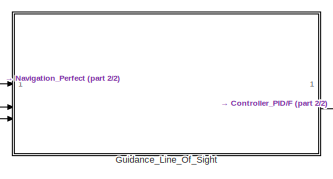
[diagram: root canvas - part 1/2, top left region]
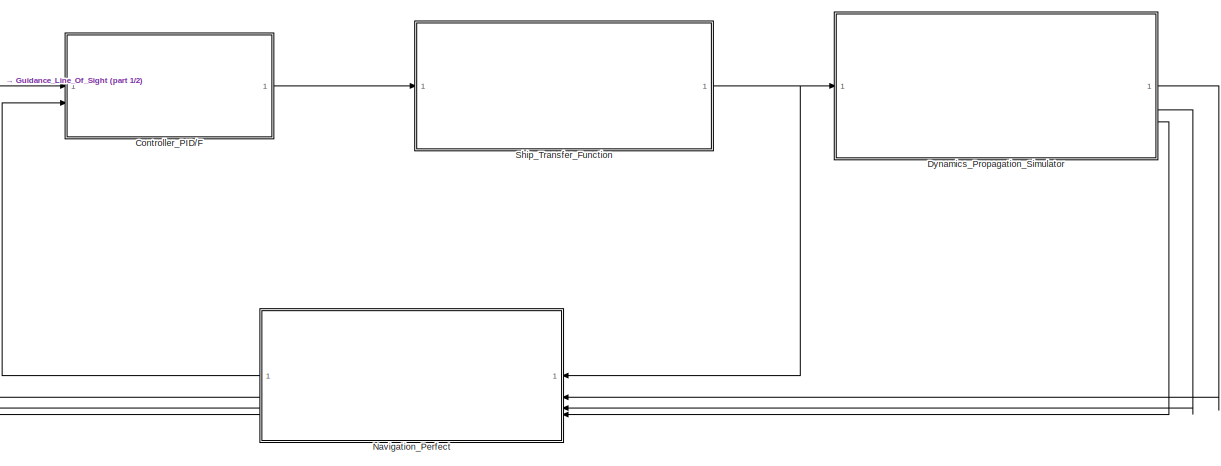
[diagram: root canvas - part 2/2, center side, full height]
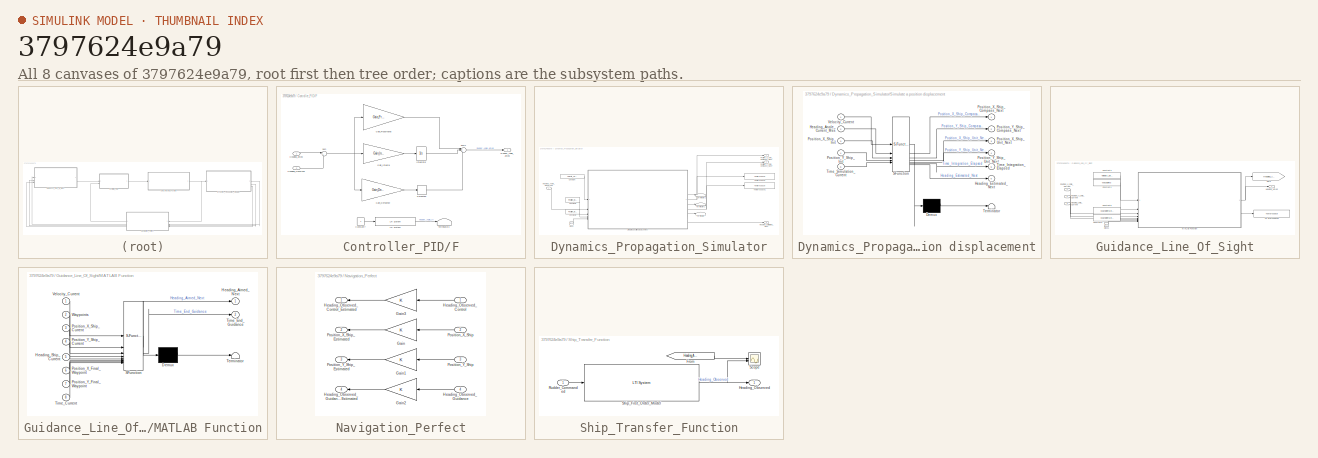
[diagram: thumbnail index - all 8 canvases of the model, root first then tree order]
MODEL slx_3797624e9a79
KIND model
CONFIG AbsTol = auto
CONFIG EnableMultiTasking = off
CONFIG FixedStep = auto
CONFIG MaxStep = auto
CONFIG MinStep = auto
CONFIG RelTol = 1e-3
CONFIG SampleTimeConstraint = Unconstrained
CONFIG SolverName = VariableStepAuto
CONFIG StartTime = 0.0
CONFIG StopTime = 2842
BLOCK [SubSystem] Controller_PID//F
BLOCK [Constant] Controller_PID//F/Constant7
BLOCK [Derivative] Controller_PID//F/Derivative
BLOCK [Gain] Controller_PID//F/Gain_Derivative
  Gain = Gain_Derivative_Controller
BLOCK [Gain] Controller_PID//F/Gain_Integral
  Gain = Gain_Integral_Controller
BLOCK [Gain] Controller_PID//F/Gain_Proportional
  Gain = Gain_Proportional_Controller
BLOCK [Inport] Controller_PID//F/Heading_Aimed
BLOCK [Inport] Controller_PID//F/Heading_Observed
  Port = 2
BLOCK [Integrator] Controller_PID//F/Integrator
BLOCK [Reference] Controller_PID//F/LTI System  REF=cstblocks/LTI System
  SourceBlock = cstblocks/LTI System
  SourceType = LTI Block
BLOCK [Outport] Controller_PID//F/Rudder_Angle_Aimed
BLOCK [Sum] Controller_PID//F/Sum
  Inputs = |+-
BLOCK [Sum] Controller_PID//F/Sum1
  Inputs = |+++
BLOCK [Terminator] Controller_PID//F/Terminator3
BLOCK [SubSystem] Dynamics_Propagation_Simulator
BLOCK [Clock] Dynamics_Propagation_Simulator/Clock
BLOCK [Constant] Dynamics_Propagation_Simulator/Constant
  Value = Velocity_Ship_Mean
BLOCK [Constant] Dynamics_Propagation_Simulator/Constant1
  Value = Position_Initial_X
BLOCK [Constant] Dynamics_Propagation_Simulator/Constant2
  Value = Position_Initial_Y
BLOCK [Inport] Dynamics_Propagation_Simulator/Heading_Angle_Observed
BLOCK [Outport] Dynamics_Propagation_Simulator/Heading_Estimated_Next
  Port = 3
BLOCK [Outport] Dynamics_Propagation_Simulator/Position_X_Ship_Compass_Next
BLOCK [Outport] Dynamics_Propagation_Simulator/Position_Y_Ship_Compass_Next
  Port = 2
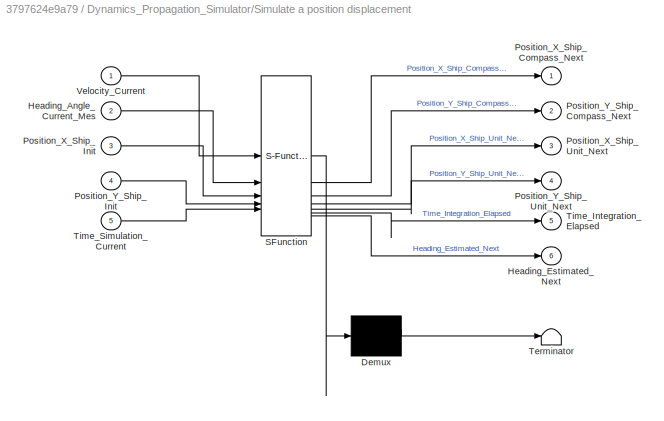
BLOCK [SubSystem] Dynamics_Propagation_Simulator/Simulate a position displacement
  ErrorFcn = Stateflow.Translate.translate
  PermitHierarchicalResolution = ExplicitOnly
  SFBlockType = MATLAB Function
  TreatAsAtomicUnit = on
BLOCK [Demux] Dynamics_Propagation_Simulator/Simulate a position displacement/ Demux 
  Outputs = 1
BLOCK [S-Function] Dynamics_Propagation_Simulator/Simulate a position displacement/ SFunction 
  EnableBusSupport = on
  FunctionName = sf_sfun
  PortCounts = [5 7]
  SFcnIsStateOwnerBlock = off
  SFunctionDeploymentMode = off
  Tag = Stateflow S-Function 2
BLOCK [Terminator] Dynamics_Propagation_Simulator/Simulate a position displacement/ Terminator 
BLOCK [Inport] Dynamics_Propagation_Simulator/Simulate a position displacement/Heading_Angle_Current_Mes
  Port = 2
BLOCK [Outport] Dynamics_Propagation_Simulator/Simulate a position displacement/Heading_Estimated_Next
  Port = 6
BLOCK [Outport] Dynamics_Propagation_Simulator/Simulate a position displacement/Position_X_Ship_Compass_Next
BLOCK [Inport] Dynamics_Propagation_Simulator/Simulate a position displacement/Position_X_Ship_Init
  Port = 3
BLOCK [Outport] Dynamics_Propagation_Simulator/Simulate a position displacement/Position_X_Ship_Unit_Next
  Port = 3
BLOCK [Outport] Dynamics_Propagation_Simulator/Simulate a position displacement/Position_Y_Ship_Compass_Next
  Port = 2
BLOCK [Inport] Dynamics_Propagation_Simulator/Simulate a position displacement/Position_Y_Ship_Init
  Port = 4
BLOCK [Outport] Dynamics_Propagation_Simulator/Simulate a position displacement/Position_Y_Ship_Unit_Next
  Port = 4
BLOCK [Outport] Dynamics_Propagation_Simulator/Simulate a position displacement/Time_Integration_Elapsed
  Port = 5
BLOCK [Inport] Dynamics_Propagation_Simulator/Simulate a position displacement/Time_Simulation_Current
  Port = 5
BLOCK [Inport] Dynamics_Propagation_Simulator/Simulate a position displacement/Velocity_Current
BLOCK [Terminator] Dynamics_Propagation_Simulator/Terminator
BLOCK [Terminator] Dynamics_Propagation_Simulator/Terminator1
BLOCK [Terminator] Dynamics_Propagation_Simulator/Terminator2
BLOCK [ToWorkspace] Dynamics_Propagation_Simulator/To Workspace
  FixptAsFi = on
  MaxDataPoints = inf
  SampleTime = -1
  SaveFormat = Timeseries
  VariableName = Position_Along_X_Axis
BLOCK [ToWorkspace] Dynamics_Propagation_Simulator/To Workspace1
  FixptAsFi = on
  MaxDataPoints = inf
  SampleTime = -1
  SaveFormat = Timeseries
  VariableName = Position_Along_Y_Axis
BLOCK [SubSystem] Guidance_Line_Of_Sight
BLOCK [Clock] Guidance_Line_Of_Sight/Clock1
BLOCK [Constant] Guidance_Line_Of_Sight/Constant3
  Value = Velocity_Ship_Mean
BLOCK [Constant] Guidance_Line_Of_Sight/Constant4
  Value = Waypoints
BLOCK [Constant] Guidance_Line_Of_Sight/Constant5
  Value = Waypoints(end,1)
BLOCK [Constant] Guidance_Line_Of_Sight/Constant6
  Value = Waypoints(end,2)
BLOCK [Goto] Guidance_Line_Of_Sight/Goto
  GotoTag = Heading_Aimed
  TagVisibility = global
BLOCK [Outport] Guidance_Line_Of_Sight/Heading_Aimed
BLOCK [Inport] Guidance_Line_Of_Sight/Heading_Ship_Current
  Port = 3
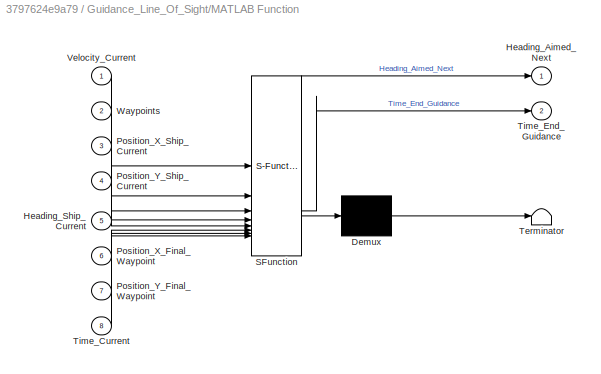
BLOCK [SubSystem] Guidance_Line_Of_Sight/MATLAB Function
  ErrorFcn = Stateflow.Translate.translate
  PermitHierarchicalResolution = ExplicitOnly
  SFBlockType = MATLAB Function
  TreatAsAtomicUnit = on
BLOCK [Demux] Guidance_Line_Of_Sight/MATLAB Function/ Demux 
  Outputs = 1
BLOCK [S-Function] Guidance_Line_Of_Sight/MATLAB Function/ SFunction 
  EnableBusSupport = on
  FunctionName = sf_sfun
  PortCounts = [8 3]
  SFcnIsStateOwnerBlock = off
  SFunctionDeploymentMode = off
  Tag = Stateflow S-Function 1
BLOCK [Terminator] Guidance_Line_Of_Sight/MATLAB Function/ Terminator 
BLOCK [Outport] Guidance_Line_Of_Sight/MATLAB Function/Heading_Aimed_Next
BLOCK [Inport] Guidance_Line_Of_Sight/MATLAB Function/Heading_Ship_Current
  Port = 5
BLOCK [Inport] Guidance_Line_Of_Sight/MATLAB Function/Position_X_Final_Waypoint
  Port = 6
BLOCK [Inport] Guidance_Line_Of_Sight/MATLAB Function/Position_X_Ship_Current
  Port = 3
BLOCK [Inport] Guidance_Line_Of_Sight/MATLAB Function/Position_Y_Final_Waypoint
  Port = 7
BLOCK [Inport] Guidance_Line_Of_Sight/MATLAB Function/Position_Y_Ship_Current
  Port = 4
BLOCK [Inport] Guidance_Line_Of_Sight/MATLAB Function/Time_Current
  Port = 8
BLOCK [Outport] Guidance_Line_Of_Sight/MATLAB Function/Time_End_Guidance
  Port = 2
BLOCK [Inport] Guidance_Line_Of_Sight/MATLAB Function/Velocity_Current
BLOCK [Inport] Guidance_Line_Of_Sight/MATLAB Function/Waypoints
  Port = 2
BLOCK [Inport] Guidance_Line_Of_Sight/Position_X_Ship_Current
BLOCK [Inport] Guidance_Line_Of_Sight/Position_Y_Ship_Current
  Port = 2
BLOCK [ToWorkspace] Guidance_Line_Of_Sight/To Workspace2
  FixptAsFi = on
  MaxDataPoints = inf
  SampleTime = -1
  SaveFormat = Timeseries
  VariableName = Time_End_Guidance_Algorithm
BLOCK [SubSystem] Navigation_Perfect
BLOCK [Gain] Navigation_Perfect/Gain
BLOCK [Gain] Navigation_Perfect/Gain1
BLOCK [Gain] Navigation_Perfect/Gain2
BLOCK [Gain] Navigation_Perfect/Gain3
BLOCK [Inport] Navigation_Perfect/Heading_Observed_Control
BLOCK [Outport] Navigation_Perfect/Heading_Observed_Control_Estimated
BLOCK [Inport] Navigation_Perfect/Heading_Observed_Guidance
  Port = 4
BLOCK [Outport] Navigation_Perfect/Heading_Observed_Guidance_Estimated
  Port = 4
BLOCK [Inport] Navigation_Perfect/Position_X_Ship
  Port = 2
BLOCK [Outport] Navigation_Perfect/Position_X_Ship_Estimated
  Port = 2
BLOCK [Inport] Navigation_Perfect/Position_Y_Ship
  Port = 3
BLOCK [Outport] Navigation_Perfect/Position_Y_Ship_Estimated
  Port = 3
BLOCK [SubSystem] Ship_Transfer_Function
BLOCK [From] Ship_Transfer_Function/From
  GotoTag = Heading_Aimed
  TagVisibility = global
BLOCK [Outport] Ship_Transfer_Function/Heading_Observed
BLOCK [Inport] Ship_Transfer_Function/Rudder_Commanded
BLOCK [Scope] Ship_Transfer_Function/Scope
  Floating = off
  NumInputPorts = 2
  ScopeSpecificationString = Simulink.scopes.TimeScopeBlockCfg('CurrentConfiguration', extmgr.ConfigurationSet(extmgr.Configuration('Core','General UI',true),extmgr.Configuration('Core','Source UI',true),extmgr.Configuration('Sources','WiredSimulink',true),extmgr.Configuration('Visuals','Time Domain',true,'SerializedDisplays',{struct('MinYLimReal','-1.40631','MaxYLimReal','3.01601','YLabelReal','','MinYLimMag','0.00000','MaxY...<+1492ch>
BLOCK [Reference] Ship_Transfer_Function/Ship_First_Order_Model  REF=cstblocks/LTI System
  SourceBlock = cstblocks/LTI System
  SourceType = LTI Block
LINE Controller_PID//F/Constant7:1 -> Controller_PID//F/LTI System:1
LINE Controller_PID//F/Derivative:1 -> Controller_PID//F/Sum1:3
LINE Controller_PID//F/Gain_Derivative:1 -> Controller_PID//F/Derivative:1
LINE Controller_PID//F/Gain_Integral:1 -> Controller_PID//F/Integrator:1
LINE Controller_PID//F/Gain_Proportional:1 -> Controller_PID//F/Sum1:1
LINE Controller_PID//F/Heading_Aimed:1 -> Controller_PID//F/Sum:1
LINE Controller_PID//F/Heading_Observed:1 -> Controller_PID//F/Sum:2
LINE Controller_PID//F/Integrator:1 -> Controller_PID//F/Sum1:2
LINE Controller_PID//F/LTI System:1 -> Controller_PID//F/Terminator3:1
LINE Controller_PID//F/Sum1:1 -> Controller_PID//F/Rudder_Angle_Aimed:1
NET Controller_PID//F/Sum:1 -> Controller_PID//F/Gain_Derivative:1, Controller_PID//F/Gain_Integral:1, Controller_PID//F/Gain_Proportional:1
LINE Controller_PID//F:1 -> Ship_Transfer_Function:1
LINE Dynamics_Propagation_Simulator/Clock:1 -> Dynamics_Propagation_Simulator/Simulate a position displacement:5
LINE Dynamics_Propagation_Simulator/Constant1:1 -> Dynamics_Propagation_Simulator/Simulate a position displacement:3
LINE Dynamics_Propagation_Simulator/Constant2:1 -> Dynamics_Propagation_Simulator/Simulate a position displacement:4
LINE Dynamics_Propagation_Simulator/Constant:1 -> Dynamics_Propagation_Simulator/Simulate a position displacement:1
LINE Dynamics_Propagation_Simulator/Heading_Angle_Observed:1 -> Dynamics_Propagation_Simulator/Simulate a position displacement:2
NET Dynamics_Propagation_Simulator/Simulate a position displacement:1 -> Dynamics_Propagation_Simulator/Position_X_Ship_Compass_Next:1, Dynamics_Propagation_Simulator/To Workspace:1
NET Dynamics_Propagation_Simulator/Simulate a position displacement:2 -> Dynamics_Propagation_Simulator/Position_Y_Ship_Compass_Next:1, Dynamics_Propagation_Simulator/To Workspace1:1
LINE Dynamics_Propagation_Simulator/Simulate a position displacement:3 -> Dynamics_Propagation_Simulator/Terminator2:1
LINE Dynamics_Propagation_Simulator/Simulate a position displacement:4 -> Dynamics_Propagation_Simulator/Terminator1:1
LINE Dynamics_Propagation_Simulator/Simulate a position displacement:5 -> Dynamics_Propagation_Simulator/Terminator:1
LINE Dynamics_Propagation_Simulator/Simulate a position displacement:6 -> Dynamics_Propagation_Simulator/Heading_Estimated_Next:1
LINE Dynamics_Propagation_Simulator:1 -> Navigation_Perfect:2
LINE Dynamics_Propagation_Simulator:2 -> Navigation_Perfect:3
LINE Dynamics_Propagation_Simulator:3 -> Navigation_Perfect:4
LINE Guidance_Line_Of_Sight/Clock1:1 -> Guidance_Line_Of_Sight/MATLAB Function:8
LINE Guidance_Line_Of_Sight/Constant3:1 -> Guidance_Line_Of_Sight/MATLAB Function:1
LINE Guidance_Line_Of_Sight/Constant4:1 -> Guidance_Line_Of_Sight/MATLAB Function:2
LINE Guidance_Line_Of_Sight/Constant5:1 -> Guidance_Line_Of_Sight/MATLAB Function:6
LINE Guidance_Line_Of_Sight/Constant6:1 -> Guidance_Line_Of_Sight/MATLAB Function:7
LINE Guidance_Line_Of_Sight/Heading_Ship_Current:1 -> Guidance_Line_Of_Sight/MATLAB Function:5
NET Guidance_Line_Of_Sight/MATLAB Function:1 -> Guidance_Line_Of_Sight/Goto:1, Guidance_Line_Of_Sight/Heading_Aimed:1
LINE Guidance_Line_Of_Sight/MATLAB Function:2 -> Guidance_Line_Of_Sight/To Workspace2:1
LINE Guidance_Line_Of_Sight/Position_X_Ship_Current:1 -> Guidance_Line_Of_Sight/MATLAB Function:3
LINE Guidance_Line_Of_Sight/Position_Y_Ship_Current:1 -> Guidance_Line_Of_Sight/MATLAB Function:4
LINE Guidance_Line_Of_Sight:1 -> Controller_PID//F:1
LINE Navigation_Perfect/Gain1:1 -> Navigation_Perfect/Position_Y_Ship_Estimated:1
LINE Navigation_Perfect/Gain2:1 -> Navigation_Perfect/Heading_Observed_Guidance_Estimated:1
LINE Navigation_Perfect/Gain3:1 -> Navigation_Perfect/Heading_Observed_Control_Estimated:1
LINE Navigation_Perfect/Gain:1 -> Navigation_Perfect/Position_X_Ship_Estimated:1
LINE Navigation_Perfect/Heading_Observed_Control:1 -> Navigation_Perfect/Gain3:1
LINE Navigation_Perfect/Heading_Observed_Guidance:1 -> Navigation_Perfect/Gain2:1
LINE Navigation_Perfect/Position_X_Ship:1 -> Navigation_Perfect/Gain:1
LINE Navigation_Perfect/Position_Y_Ship:1 -> Navigation_Perfect/Gain1:1
LINE Navigation_Perfect:1 -> Controller_PID//F:2
LINE Navigation_Perfect:2 -> Guidance_Line_Of_Sight:1
LINE Navigation_Perfect:3 -> Guidance_Line_Of_Sight:2
LINE Navigation_Perfect:4 -> Guidance_Line_Of_Sight:3
LINE Ship_Transfer_Function/From:1 -> Ship_Transfer_Function/Scope:1
LINE Ship_Transfer_Function/Rudder_Commanded:1 -> Ship_Transfer_Function/Ship_First_Order_Model:1
NET Ship_Transfer_Function/Ship_First_Order_Model:1 -> Ship_Transfer_Function/Heading_Observed:1, Ship_Transfer_Function/Scope:2
NET Ship_Transfer_Function:1 -> Dynamics_Propagation_Simulator:1, Navigation_Perfect:1
note: NET lines group one-source signal fan-out (src -> all destinations, sorted); 1:1 wires keep LINE
CHART Guidance_Line_Of_Sight/MATLAB Function states=1 transitions=1
  STATE_LABEL 'eML_blk_kernel()'
  STATE_LABEL 'SCRIPT:\nfunction [Heading_Aimed_Next,Time_End_Guidance] = Guidance_Waypoints_Following(Velocity_Current,...\n                                                                               Waypoints,...\n                                                                               Position_X_Ship_Current,...\n                                                                               Position_Y_Sh...<+2236ch>'
CHART Dynamics_Propagation_Simulator/Simulate a position displacement states=1 transitions=1
  STATE_LABEL 'eML_blk_kernel()'
  STATE_LABEL 'SCRIPT:\nfunction [Position_X_Ship_Compass_Next,Position_Y_Ship_Compass_Next,...\n          Position_X_Ship_Unit_Next,Position_Y_Ship_Unit_Next,...\n          Time_Integration_Elapsed,Heading_Estimated_Next] = Position_Propagation(Velocity_Current,Heading_Angle_Current_Mes,...\n                                                                                  Position_X_Ship_Init,Position_Y_Ship_Init,....<+2813ch>'
CHART  states=0 transitions=0
CHART  states=0 transitions=0
